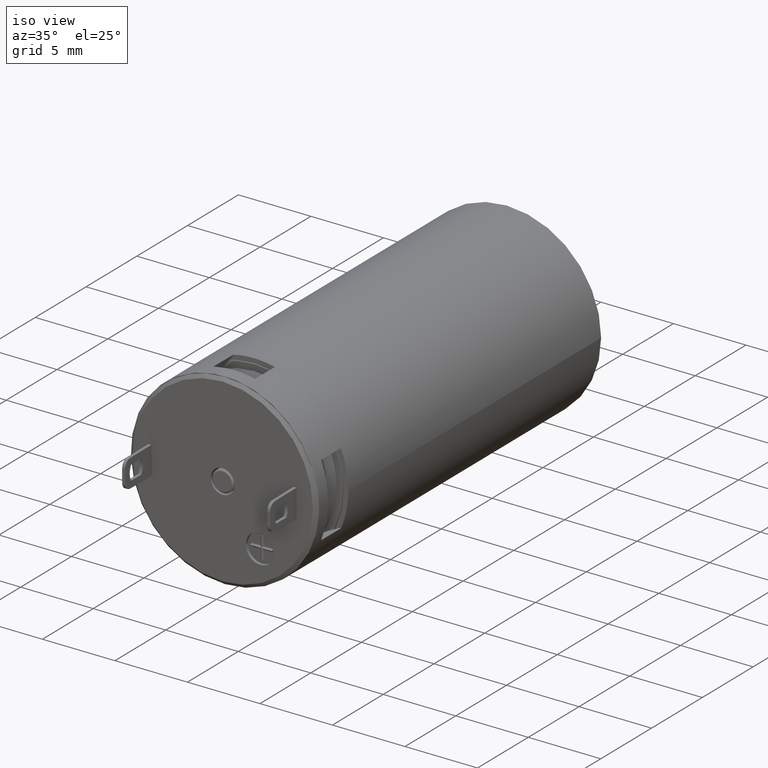
[diagram: clean part render]
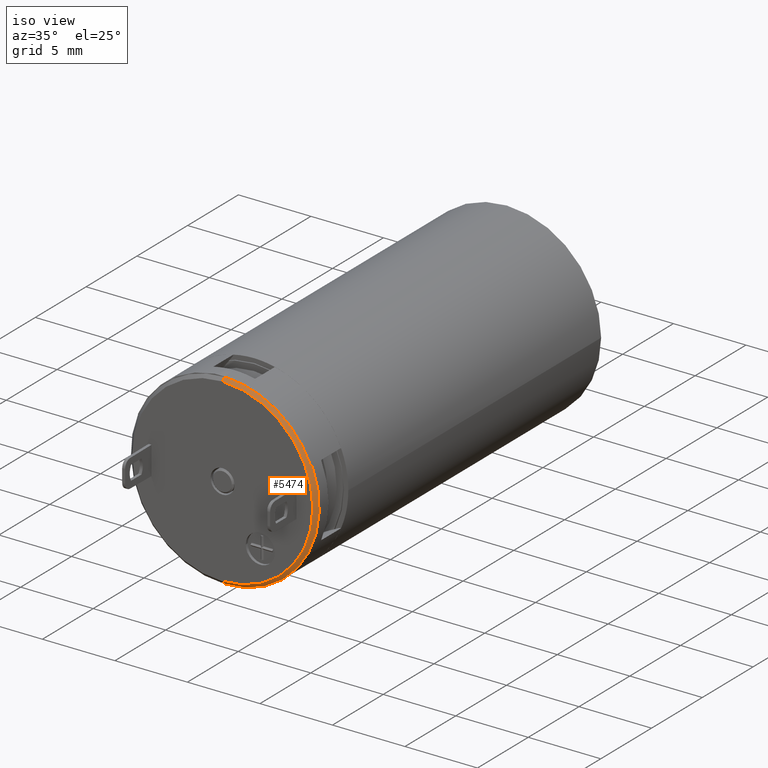
[diagram: same view with one face highlighted and labeled with its STEP entity id]
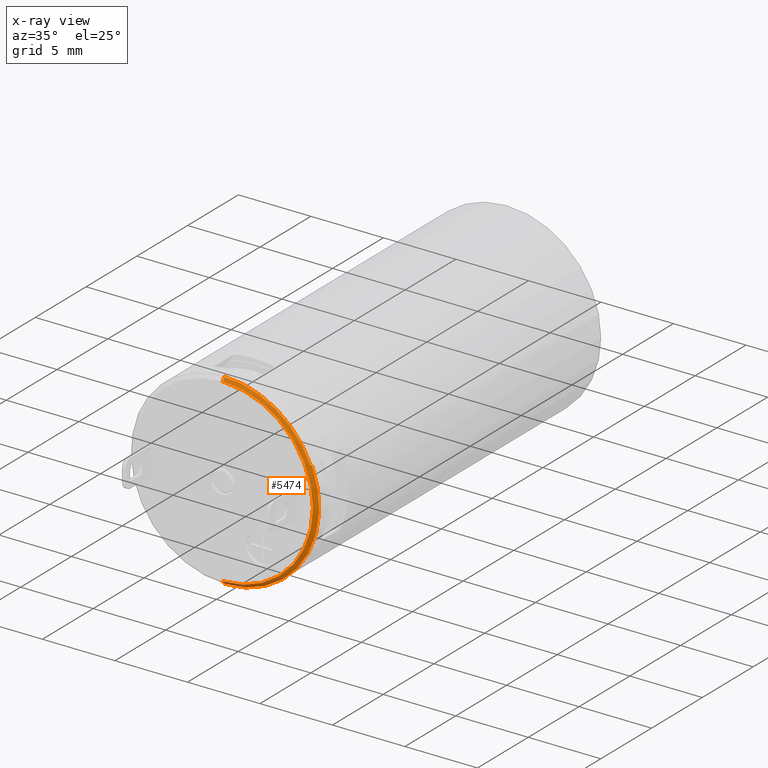
[diagram: x-ray of the same camera — body ghosted, the highlighted face saturated]
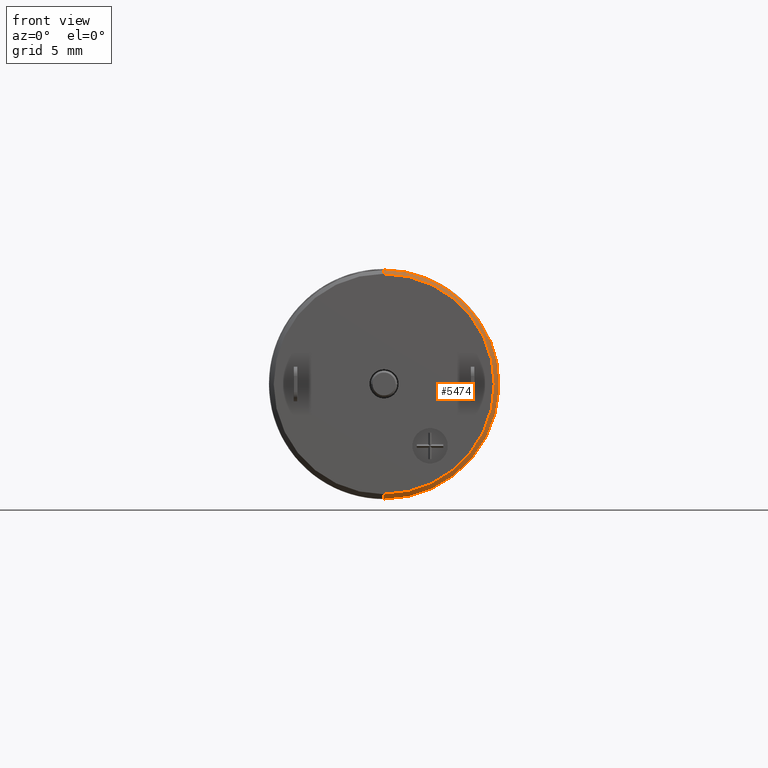
[diagram: same view with one face highlighted and labeled with its STEP entity id]
A machine part, iso view. The second image highlights one B-rep face of the part: STEP entity #5474.
The next image is the same camera in x-ray: the body ghosted, the highlighted face saturated — about 0% of this face is hidden behind the body in this view.
A second angle (front view) of the same face is appended — the face is thin or edge-on in the first view.
In plain terms, the highlighted conical surface has half-angle 46.79 deg.
Its self-contained STEP definition (entity closure, byte-faithful):
#602=CARTESIAN_POINT('',(0.E0,-3.44E1,0.E0));
#603=DIRECTION('',(0.E0,1.E0,0.E0));
#604=DIRECTION('',(0.E0,0.E0,1.E0));
#605=AXIS2_PLACEMENT_3D('',#602,#603,#604);
#1918=CARTESIAN_POINT('',(0.E0,-3.42E1,0.E0));
#1919=DIRECTION('',(0.E0,1.E0,0.E0));
#1920=DIRECTION('',(0.E0,0.E0,1.E0));
#1921=AXIS2_PLACEMENT_3D('',#1918,#1919,#1920);
#1923=CARTESIAN_POINT('',(5.994579908395E0,-3.415E1,2.500007344362E0));
#1924=CARTESIAN_POINT('',(5.988089234872E0,-3.415562113505E1,2.500024934449E0));
#1925=CARTESIAN_POINT('',(5.975128528848E0,-3.416681993281E1,2.500123260556E0));
#1926=CARTESIAN_POINT('',(5.955753810005E0,-3.418348401122E1,2.500458282505E0));
#1927=CARTESIAN_POINT('',(5.942875607589E0,-3.419450913054E1,2.500805618466E0));
#1928=CARTESIAN_POINT('',(5.936446798026E0,-3.42E1,2.501010007399E0));
#1930=CARTESIAN_POINT('',(0.E0,-3.415E1,0.E0));
#1931=DIRECTION('',(0.E0,1.E0,0.E0));
#1932=DIRECTION('',(9.229530266967E-1,0.E0,3.849126011334E-1));
#1933=AXIS2_PLACEMENT_3D('',#1930,#1931,#1932);
#1935=DIRECTION('',(0.E0,-6.846738080152E-1,7.288496255182E-1));
#1936=VECTOR('',#1935,3.651373793964E-1);
#1937=CARTESIAN_POINT('',(0.E0,-3.415E1,-6.495E0));
#1938=LINE('',#1937,#1936);
#1939=DIRECTION('',(0.E0,-6.846738080152E-1,-7.288496255182E-1));
#1940=VECTOR('',#1939,2.921099035171E-1);
#1941=CARTESIAN_POINT('',(0.E0,-3.42E1,6.441773951553E0));
#1942=LINE('',#1941,#1940);
#2735=CARTESIAN_POINT('',(0.E0,-3.415E1,-6.495E0));
#2736=CARTESIAN_POINT('',(0.E0,-3.44E1,-6.228869757764E0));
#2737=VERTEX_POINT('',#2735);
#2738=VERTEX_POINT('',#2736);
#2739=CARTESIAN_POINT('',(0.E0,-3.44E1,6.228869757764E0));
#2740=VERTEX_POINT('',#2739);
#2783=CARTESIAN_POINT('',(5.936446798026E0,-3.42E1,2.501010007399E0));
#2785=VERTEX_POINT('',#2783);
#2787=CARTESIAN_POINT('',(0.E0,-3.42E1,6.441773951553E0));
#2788=VERTEX_POINT('',#2787);
#2790=VERTEX_POINT('',#1923);
#5461=CARTESIAN_POINT('',(0.E0,-3.4275E1,0.E0));
#5462=DIRECTION('',(0.E0,1.E0,0.E0));
#5463=DIRECTION('',(0.E0,0.E0,-1.E0));
#5464=AXIS2_PLACEMENT_3D('',#5461,#5462,#5463);
#5465=CONICAL_SURFACE('',#5464,6.361934878882E0,4.679004060379E1);
#5466=ORIENTED_EDGE('',*,*,#3895,.T.);
#5467=ORIENTED_EDGE('',*,*,#5432,.F.);
#5468=ORIENTED_EDGE('',*,*,#3283,.T.);
#5469=ORIENTED_EDGE('',*,*,#3877,.T.);
#5470=ORIENTED_EDGE('',*,*,#3832,.F.);
#5471=ORIENTED_EDGE('',*,*,#3874,.F.);
#5472=EDGE_LOOP('',(#5466,#5467,#5468,#5469,#5470,#5471));
#5473=FACE_OUTER_BOUND('',#5472,.F.);
#5474=ADVANCED_FACE('',(#5473),#5465,.T.);
#606=CIRCLE('',#605,6.228869757764E0);
#1922=CIRCLE('',#1921,6.441773951553E0);
#1929=B_SPLINE_CURVE_WITH_KNOTS('',3,(#1923,#1924,#1925,#1926,#1927,#1928),
.UNSPECIFIED.,.F.,.F.,(4,1,1,4),(0.E0,3.333333333333E-1,6.666666666667E-1,1.E0),
.UNSPECIFIED.);
#1934=CIRCLE('',#1933,6.495E0);
#3283=EDGE_CURVE('',#2790,#2737,#1934,.T.);
#3832=EDGE_CURVE('',#2740,#2738,#606,.T.);
#3874=EDGE_CURVE('',#2788,#2740,#1942,.T.);
#3877=EDGE_CURVE('',#2737,#2738,#1938,.T.);
#3895=EDGE_CURVE('',#2788,#2785,#1922,.T.);
#5432=EDGE_CURVE('',#2790,#2785,#1929,.T.);